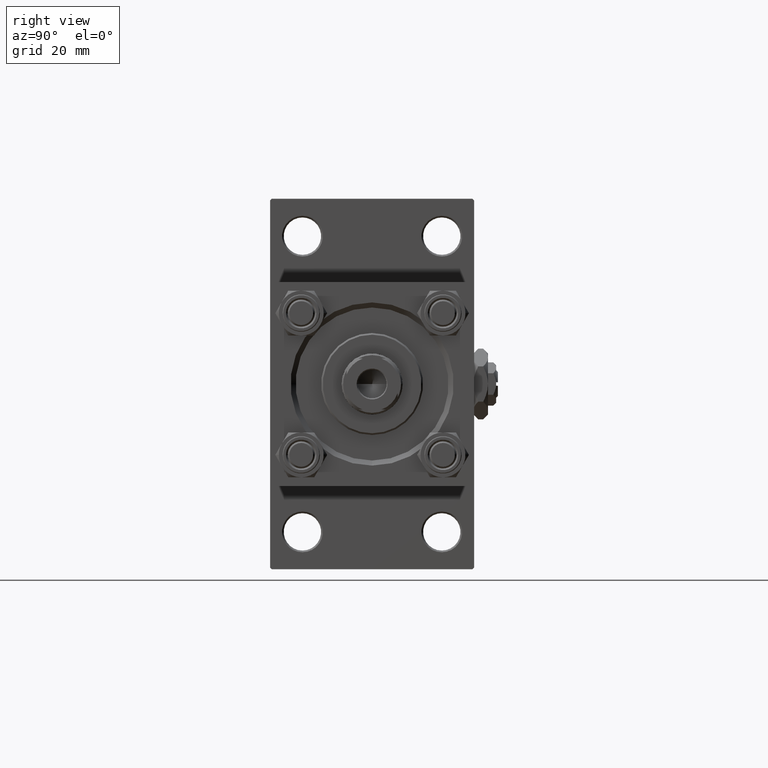
[diagram: clean part render]
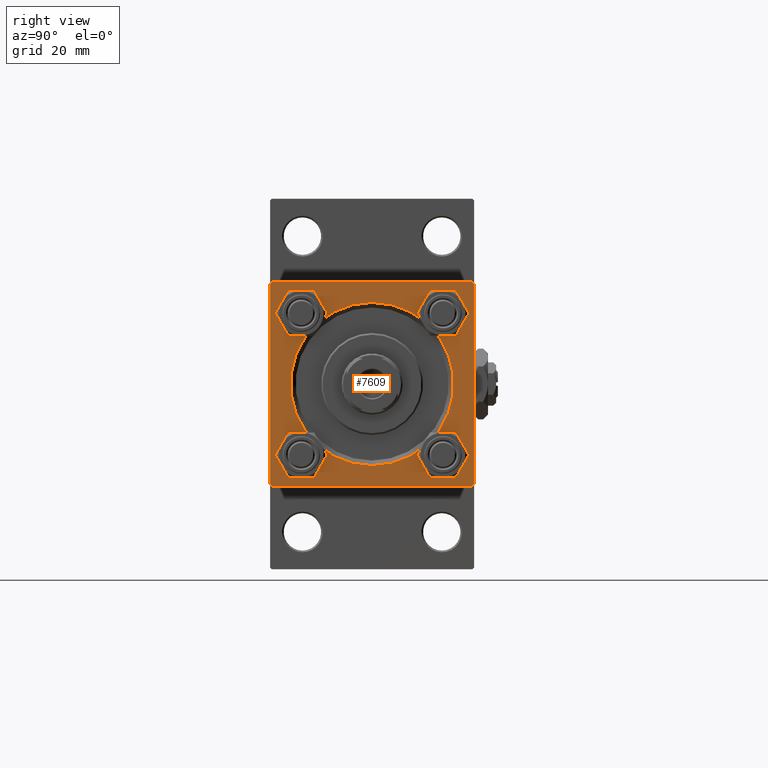
[diagram: same view with one face highlighted and labeled with its STEP entity id]
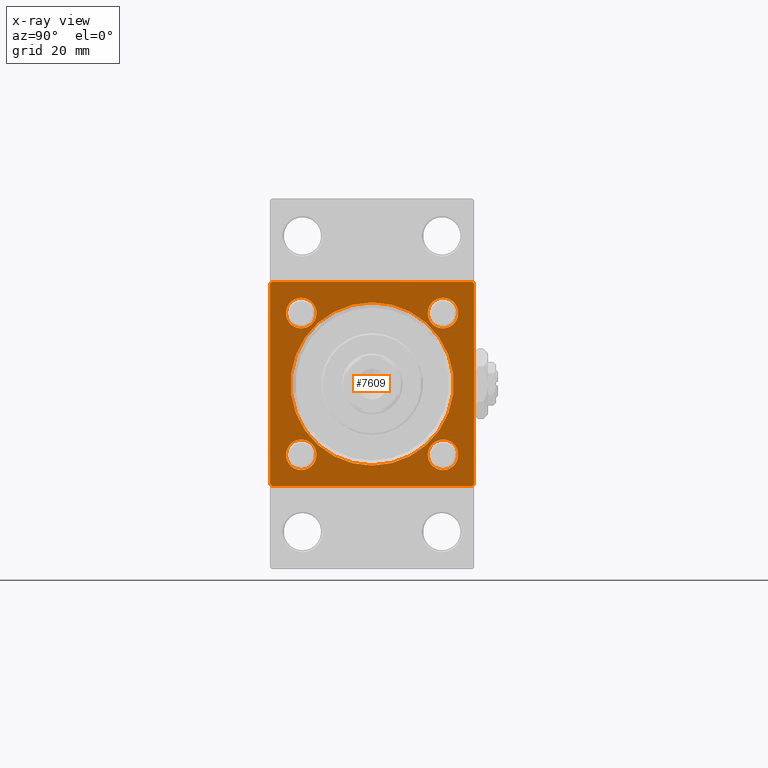
[diagram: x-ray of the same camera — body ghosted, the highlighted face saturated]
A machine part, right view. The second image highlights one B-rep face of the part: STEP entity #7609.
The next image is the same camera in x-ray: the body ghosted, the highlighted face saturated — about 0% of this face is hidden behind the body in this view.
In plain terms, the highlighted planar face has unit normal (-1, 0, 0).
Its self-contained STEP definition (entity closure, byte-faithful):
#194 = PLANE ( 'NONE',  #15462 ) ;
#703 = CARTESIAN_POINT ( 'NONE',  ( 148.0000000000000000, -20.84999999999999076, 25.34999999999998010 ) ) ;
#1420 = VERTEX_POINT ( 'NONE', #46951 ) ;
#2127 = EDGE_CURVE ( 'NONE', #1420, #8100, #51181, .T. ) ;
#2953 = DIRECTION ( 'NONE',  ( 0.000000000000000000, -1.000000000000000000, -1.156482317317871478E-16 ) ) ;
#3879 = FACE_OUTER_BOUND ( 'NONE', #17276, .T. ) ;
#4737 = EDGE_CURVE ( 'NONE', #8737, #34294, #50770, .T. ) ;
#4775 = ORIENTED_EDGE ( 'NONE', *, *, #8096, .T. ) ;
#5719 = VERTEX_POINT ( 'NONE', #20535 ) ;
#6019 = EDGE_CURVE ( 'NONE', #13498, #46460, #49897, .T. ) ;
#6140 = DIRECTION ( 'NONE',  ( 0.000000000000000000, 0.000000000000000000, 1.000000000000000000 ) ) ;
#6401 = DIRECTION ( 'NONE',  ( -1.000000000000000000, 0.000000000000000000, -0.000000000000000000 ) ) ;
#6646 = LINE ( 'NONE', #22704, #35046 ) ;
#6935 = DIRECTION ( 'NONE',  ( 0.000000000000000000, 0.000000000000000000, 1.000000000000000000 ) ) ;
#7583 = DIRECTION ( 'NONE',  ( -0.000000000000000000, 0.000000000000000000, 1.000000000000000000 ) ) ;
#7609 = ADVANCED_FACE ( 'NONE', ( #11791, #32829, #32047, #47865, #23647, #3879 ), #194, .F. ) ;
#8096 = EDGE_CURVE ( 'NONE', #36774, #35580, #32279, .T. ) ;
#8100 = VERTEX_POINT ( 'NONE', #10359 ) ;
#8148 = DIRECTION ( 'NONE',  ( 0.000000000000000000, 0.000000000000000000, 1.000000000000000000 ) ) ;
#8292 = ORIENTED_EDGE ( 'NONE', *, *, #14957, .T. ) ;
#8737 = VERTEX_POINT ( 'NONE', #41706 ) ;
#8768 = DIRECTION ( 'NONE',  ( -0.000000000000000000, 0.7071067811865474617, 0.7071067811865474617 ) ) ;
#9087 = VECTOR ( 'NONE', #8768, 1000.000000000000114 ) ;
#9126 = CIRCLE ( 'NONE', #14980, 4.499999999999976019 ) ;
#9716 = ORIENTED_EDGE ( 'NONE', *, *, #34569, .T. ) ;
#9777 = ORIENTED_EDGE ( 'NONE', *, *, #22722, .T. ) ;
#10359 = CARTESIAN_POINT ( 'NONE',  ( 148.0000000000000000, 30.00000000000000000, -29.49999999999997868 ) ) ;
#10399 = DIRECTION ( 'NONE',  ( 0.000000000000000000, 0.000000000000000000, 1.000000000000000000 ) ) ;
#10466 = ORIENTED_EDGE ( 'NONE', *, *, #4737, .T. ) ;
#10956 = DIRECTION ( 'NONE',  ( 0.000000000000000000, 0.000000000000000000, 1.000000000000000000 ) ) ;
#11791 = FACE_BOUND ( 'NONE', #22547, .T. ) ;
#11814 = CARTESIAN_POINT ( 'NONE',  ( 148.0000000000000000, -20.84999999999999076, -25.34999999999998010 ) ) ;
#11846 = EDGE_CURVE ( 'NONE', #30421, #39243, #6646, .T. ) ;
#12001 = DIRECTION ( 'NONE',  ( 0.000000000000000000, 0.000000000000000000, 1.000000000000000000 ) ) ;
#12474 = CARTESIAN_POINT ( 'NONE',  ( 148.0000000000000000, 0.000000000000000000, -23.99999999999996803 ) ) ;
#12890 = CARTESIAN_POINT ( 'NONE',  ( 148.0000000000000000, 20.84999999999999787, -20.85000000000000142 ) ) ;
#12980 = AXIS2_PLACEMENT_3D ( 'NONE', #26678, #42474, #6935 ) ;
#13498 = VERTEX_POINT ( 'NONE', #11814 ) ;
#13563 = CARTESIAN_POINT ( 'NONE',  ( 148.0000000000000000, 20.84999999999999787, 25.34999999999997655 ) ) ;
#13871 = EDGE_CURVE ( 'NONE', #46460, #13498, #9126, .T. ) ;
#14310 = AXIS2_PLACEMENT_3D ( 'NONE', #20437, #20695, #48089 ) ;
#14319 = CARTESIAN_POINT ( 'NONE',  ( 148.0000000000000000, 30.00000000000000000, 30.00000000000000000 ) ) ;
#14338 = AXIS2_PLACEMENT_3D ( 'NONE', #51482, #27503, #19089 ) ;
#14765 = ORIENTED_EDGE ( 'NONE', *, *, #46624, .T. ) ;
#14794 = ORIENTED_EDGE ( 'NONE', *, *, #11846, .T. ) ;
#14862 = DIRECTION ( 'NONE',  ( -1.000000000000000000, 0.000000000000000000, -0.000000000000000000 ) ) ;
#14957 = EDGE_CURVE ( 'NONE', #1420, #30421, #19691, .T. ) ;
#14967 = ORIENTED_EDGE ( 'NONE', *, *, #31428, .F. ) ;
#14980 = AXIS2_PLACEMENT_3D ( 'NONE', #40684, #40160, #12001 ) ;
#15462 = AXIS2_PLACEMENT_3D ( 'NONE', #36506, #19684, #7583 ) ;
#15615 = LINE ( 'NONE', #31660, #21873 ) ;
#15786 = CARTESIAN_POINT ( 'NONE',  ( 148.0000000000000000, -20.84999999999999076, 20.85000000000000497 ) ) ;
#15913 = EDGE_CURVE ( 'NONE', #30052, #5719, #23494, .T. ) ;
#16331 = ORIENTED_EDGE ( 'NONE', *, *, #2127, .F. ) ;
#16497 = CARTESIAN_POINT ( 'NONE',  ( 148.0000000000000000, -29.50000000000000000, -30.00000000000000000 ) ) ;
#17121 = CIRCLE ( 'NONE', #47387, 4.499999999999976019 ) ;
#17276 = EDGE_LOOP ( 'NONE', ( #10466, #51344, #14967, #40248, #16331, #8292, #14794, #48495 ) ) ;
#17636 = ORIENTED_EDGE ( 'NONE', *, *, #36322, .T. ) ;
#17902 = EDGE_CURVE ( 'NONE', #34294, #51913, #15615, .T. ) ;
#18886 = VECTOR ( 'NONE', #21901, 1000.000000000000000 ) ;
#19089 = DIRECTION ( 'NONE',  ( 0.000000000000000000, 0.000000000000000000, 1.000000000000000000 ) ) ;
#19684 = DIRECTION ( 'NONE',  ( -1.000000000000000000, 0.000000000000000000, -0.000000000000000000 ) ) ;
#19691 = LINE ( 'NONE', #35744, #20056 ) ;
#19838 = LINE ( 'NONE', #44829, #9087 ) ;
#20056 = VECTOR ( 'NONE', #33105, 1000.000000000000114 ) ;
#20437 = CARTESIAN_POINT ( 'NONE',  ( 148.0000000000000000, 0.000000000000000000, 0.000000000000000000 ) ) ;
#20535 = CARTESIAN_POINT ( 'NONE',  ( 148.0000000000000000, -20.84999999999999076, 16.35000000000002629 ) ) ;
#20695 = DIRECTION ( 'NONE',  ( -1.000000000000000000, 0.000000000000000000, -0.000000000000000000 ) ) ;
#20969 = AXIS2_PLACEMENT_3D ( 'NONE', #25485, #38084, #41526 ) ;
#21873 = VECTOR ( 'NONE', #47738, 1000.000000000000114 ) ;
#21878 = CIRCLE ( 'NONE', #14310, 23.99999999999996803 ) ;
#21901 = DIRECTION ( 'NONE',  ( 0.000000000000000000, -1.000000000000000000, -1.156482317317871478E-16 ) ) ;
#22151 = VECTOR ( 'NONE', #30355, 1000.000000000000000 ) ;
#22547 = EDGE_LOOP ( 'NONE', ( #36837, #40014 ) ) ;
#22704 = CARTESIAN_POINT ( 'NONE',  ( 148.0000000000000000, 30.00000000000000000, 30.00000000000000000 ) ) ;
#22722 = EDGE_CURVE ( 'NONE', #40586, #30198, #48814, .T. ) ;
#22733 = VERTEX_POINT ( 'NONE', #44860 ) ;
#23382 = VECTOR ( 'NONE', #46722, 1000.000000000000114 ) ;
#23494 = CIRCLE ( 'NONE', #20969, 4.499999999999976019 ) ;
#23647 = FACE_BOUND ( 'NONE', #37557, .T. ) ;
#24224 = DIRECTION ( 'NONE',  ( -1.000000000000000000, 0.000000000000000000, -0.000000000000000000 ) ) ;
#24355 = CARTESIAN_POINT ( 'NONE',  ( 148.0000000000000000, 20.84999999999999787, 16.35000000000002274 ) ) ;
#25409 = CARTESIAN_POINT ( 'NONE',  ( 148.0000000000000000, -29.50000000000002487, 29.99999999999999289 ) ) ;
#25485 = CARTESIAN_POINT ( 'NONE',  ( 148.0000000000000000, -20.84999999999999076, 20.85000000000000497 ) ) ;
#25596 = LINE ( 'NONE', #25842, #18886 ) ;
#25842 = CARTESIAN_POINT ( 'NONE',  ( 148.0000000000000000, 30.00000000000000000, -29.99999999999999289 ) ) ;
#26090 = CARTESIAN_POINT ( 'NONE',  ( 148.0000000000000000, 20.84999999999999787, -25.34999999999997655 ) ) ;
#26429 = DIRECTION ( 'NONE',  ( 0.000000000000000000, 0.000000000000000000, 1.000000000000000000 ) ) ;
#26678 = CARTESIAN_POINT ( 'NONE',  ( 148.0000000000000000, 0.000000000000000000, 0.000000000000000000 ) ) ;
#26712 = CARTESIAN_POINT ( 'NONE',  ( 148.0000000000000000, 2.939152317953644345E-15, 23.99999999999996803 ) ) ;
#26952 = CARTESIAN_POINT ( 'NONE',  ( 148.0000000000000000, -20.84999999999999076, -20.85000000000000497 ) ) ;
#26956 = ORIENTED_EDGE ( 'NONE', *, *, #39114, .T. ) ;
#27011 = EDGE_LOOP ( 'NONE', ( #26956, #9716 ) ) ;
#27503 = DIRECTION ( 'NONE',  ( -1.000000000000000000, 0.000000000000000000, -0.000000000000000000 ) ) ;
#27558 = AXIS2_PLACEMENT_3D ( 'NONE', #43067, #34898, #10956 ) ;
#30015 = CARTESIAN_POINT ( 'NONE',  ( 148.0000000000000000, -30.00000000000000000, -29.49999999999998579 ) ) ;
#30052 = VERTEX_POINT ( 'NONE', #703 ) ;
#30198 = VERTEX_POINT ( 'NONE', #24355 ) ;
#30355 = DIRECTION ( 'NONE',  ( 0.000000000000000000, 0.000000000000000000, -1.000000000000000000 ) ) ;
#30421 = VERTEX_POINT ( 'NONE', #49235 ) ;
#30897 = AXIS2_PLACEMENT_3D ( 'NONE', #42776, #14862, #10399 ) ;
#31158 = ORIENTED_EDGE ( 'NONE', *, *, #15913, .T. ) ;
#31348 = VECTOR ( 'NONE', #42587, 1000.000000000000000 ) ;
#31428 = EDGE_CURVE ( 'NONE', #47545, #51913, #25596, .T. ) ;
#31660 = CARTESIAN_POINT ( 'NONE',  ( 148.0000000000000000, -29.50000000000000000, -30.00000000000000000 ) ) ;
#32047 = FACE_BOUND ( 'NONE', #48676, .T. ) ;
#32206 = AXIS2_PLACEMENT_3D ( 'NONE', #26952, #38782, #26429 ) ;
#32279 = CIRCLE ( 'NONE', #12980, 23.99999999999996803 ) ;
#32535 = CARTESIAN_POINT ( 'NONE',  ( 148.0000000000000000, -20.84999999999999076, -16.35000000000002629 ) ) ;
#32829 = FACE_BOUND ( 'NONE', #27011, .T. ) ;
#33105 = DIRECTION ( 'NONE',  ( 0.000000000000000000, -0.7071067811865474617, 0.7071067811865474617 ) ) ;
#34294 = VERTEX_POINT ( 'NONE', #30015 ) ;
#34569 = EDGE_CURVE ( 'NONE', #22733, #37207, #17121, .T. ) ;
#34898 = DIRECTION ( 'NONE',  ( -1.000000000000000000, 0.000000000000000000, -0.000000000000000000 ) ) ;
#35046 = VECTOR ( 'NONE', #2953, 1000.000000000000000 ) ;
#35400 = CARTESIAN_POINT ( 'NONE',  ( 148.0000000000000000, 29.50000000000000000, -29.99999999999999289 ) ) ;
#35580 = VERTEX_POINT ( 'NONE', #26712 ) ;
#35744 = CARTESIAN_POINT ( 'NONE',  ( 148.0000000000000000, 29.50000000000000000, 30.00000000000000000 ) ) ;
#36322 = EDGE_CURVE ( 'NONE', #35580, #36774, #21878, .T. ) ;
#36506 = CARTESIAN_POINT ( 'NONE',  ( 148.0000000000000000, 0.000000000000000000, 0.000000000000000000 ) ) ;
#36774 = VERTEX_POINT ( 'NONE', #12474 ) ;
#36837 = ORIENTED_EDGE ( 'NONE', *, *, #6019, .T. ) ;
#37207 = VERTEX_POINT ( 'NONE', #26090 ) ;
#37557 = EDGE_LOOP ( 'NONE', ( #4775, #17636 ) ) ;
#38084 = DIRECTION ( 'NONE',  ( -1.000000000000000000, 0.000000000000000000, -0.000000000000000000 ) ) ;
#38782 = DIRECTION ( 'NONE',  ( -1.000000000000000000, 0.000000000000000000, -0.000000000000000000 ) ) ;
#39114 = EDGE_CURVE ( 'NONE', #37207, #22733, #50263, .T. ) ;
#39152 = EDGE_LOOP ( 'NONE', ( #46314, #31158 ) ) ;
#39243 = VERTEX_POINT ( 'NONE', #25409 ) ;
#40014 = ORIENTED_EDGE ( 'NONE', *, *, #13871, .T. ) ;
#40160 = DIRECTION ( 'NONE',  ( -1.000000000000000000, 0.000000000000000000, -0.000000000000000000 ) ) ;
#40248 = ORIENTED_EDGE ( 'NONE', *, *, #43257, .T. ) ;
#40586 = VERTEX_POINT ( 'NONE', #13563 ) ;
#40684 = CARTESIAN_POINT ( 'NONE',  ( 148.0000000000000000, -20.84999999999999076, -20.85000000000000497 ) ) ;
#41526 = DIRECTION ( 'NONE',  ( 0.000000000000000000, 0.000000000000000000, 1.000000000000000000 ) ) ;
#41706 = CARTESIAN_POINT ( 'NONE',  ( 148.0000000000000000, -30.00000000000000000, 29.50000000000001776 ) ) ;
#41964 = CIRCLE ( 'NONE', #30897, 4.499999999999976019 ) ;
#42474 = DIRECTION ( 'NONE',  ( -1.000000000000000000, 0.000000000000000000, -0.000000000000000000 ) ) ;
#42497 = LINE ( 'NONE', #50932, #23382 ) ;
#42587 = DIRECTION ( 'NONE',  ( 0.000000000000000000, 0.000000000000000000, -1.000000000000000000 ) ) ;
#42776 = CARTESIAN_POINT ( 'NONE',  ( 148.0000000000000000, 20.84999999999999787, 20.85000000000000142 ) ) ;
#42787 = CIRCLE ( 'NONE', #43658, 4.499999999999976019 ) ;
#43006 = EDGE_CURVE ( 'NONE', #39243, #8737, #42497, .T. ) ;
#43067 = CARTESIAN_POINT ( 'NONE',  ( 148.0000000000000000, 20.84999999999999787, -20.85000000000000142 ) ) ;
#43257 = EDGE_CURVE ( 'NONE', #47545, #8100, #19838, .T. ) ;
#43658 = AXIS2_PLACEMENT_3D ( 'NONE', #15786, #6401, #6140 ) ;
#44829 = CARTESIAN_POINT ( 'NONE',  ( 148.0000000000000000, 30.00000000000000000, -29.49999999999999289 ) ) ;
#44860 = CARTESIAN_POINT ( 'NONE',  ( 148.0000000000000000, 20.84999999999999787, -16.35000000000002274 ) ) ;
#46314 = ORIENTED_EDGE ( 'NONE', *, *, #49249, .T. ) ;
#46460 = VERTEX_POINT ( 'NONE', #32535 ) ;
#46559 = CARTESIAN_POINT ( 'NONE',  ( 148.0000000000000000, -30.00000000000000000, 29.99999999999999289 ) ) ;
#46624 = EDGE_CURVE ( 'NONE', #30198, #40586, #41964, .T. ) ;
#46722 = DIRECTION ( 'NONE',  ( -0.000000000000000000, -0.7071067811865474617, -0.7071067811865474617 ) ) ;
#46951 = CARTESIAN_POINT ( 'NONE',  ( 148.0000000000000000, 30.00000000000000000, 29.50000000000000000 ) ) ;
#47387 = AXIS2_PLACEMENT_3D ( 'NONE', #12890, #24224, #8148 ) ;
#47545 = VERTEX_POINT ( 'NONE', #35400 ) ;
#47738 = DIRECTION ( 'NONE',  ( 0.000000000000000000, 0.7071067811865474617, -0.7071067811865474617 ) ) ;
#47865 = FACE_BOUND ( 'NONE', #39152, .T. ) ;
#48089 = DIRECTION ( 'NONE',  ( 0.000000000000000000, 0.000000000000000000, 1.000000000000000000 ) ) ;
#48495 = ORIENTED_EDGE ( 'NONE', *, *, #43006, .T. ) ;
#48676 = EDGE_LOOP ( 'NONE', ( #14765, #9777 ) ) ;
#48814 = CIRCLE ( 'NONE', #14338, 4.499999999999976019 ) ;
#49235 = CARTESIAN_POINT ( 'NONE',  ( 148.0000000000000000, 29.50000000000000000, 30.00000000000000000 ) ) ;
#49249 = EDGE_CURVE ( 'NONE', #5719, #30052, #42787, .T. ) ;
#49897 = CIRCLE ( 'NONE', #32206, 4.499999999999976019 ) ;
#50263 = CIRCLE ( 'NONE', #27558, 4.499999999999976019 ) ;
#50770 = LINE ( 'NONE', #46559, #31348 ) ;
#50932 = CARTESIAN_POINT ( 'NONE',  ( 148.0000000000000000, -30.00000000000000000, 29.50000000000001776 ) ) ;
#51181 = LINE ( 'NONE', #14319, #22151 ) ;
#51344 = ORIENTED_EDGE ( 'NONE', *, *, #17902, .T. ) ;
#51482 = CARTESIAN_POINT ( 'NONE',  ( 148.0000000000000000, 20.84999999999999787, 20.85000000000000142 ) ) ;
#51913 = VERTEX_POINT ( 'NONE', #16497 ) ;